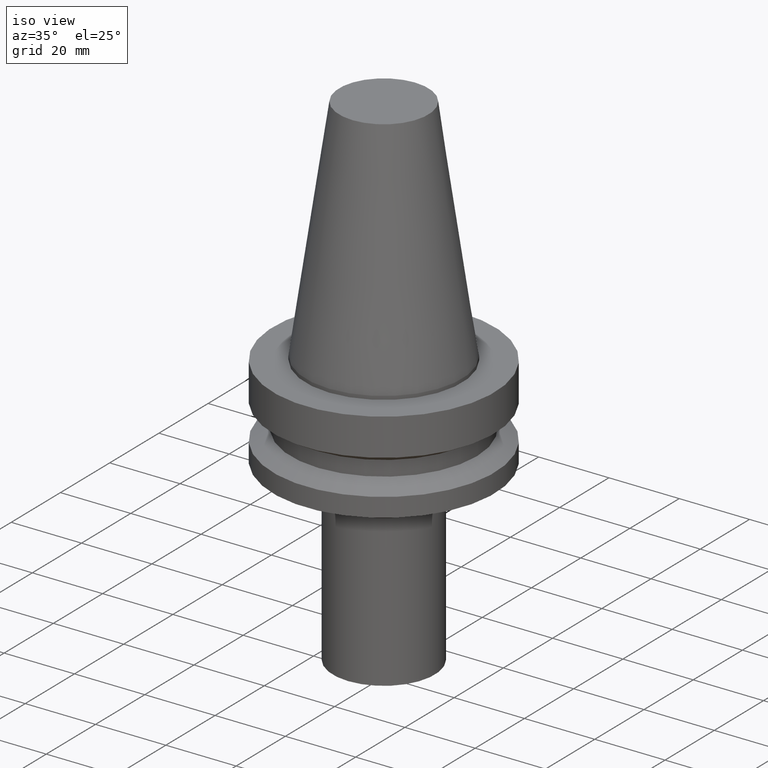
[diagram: clean part render]
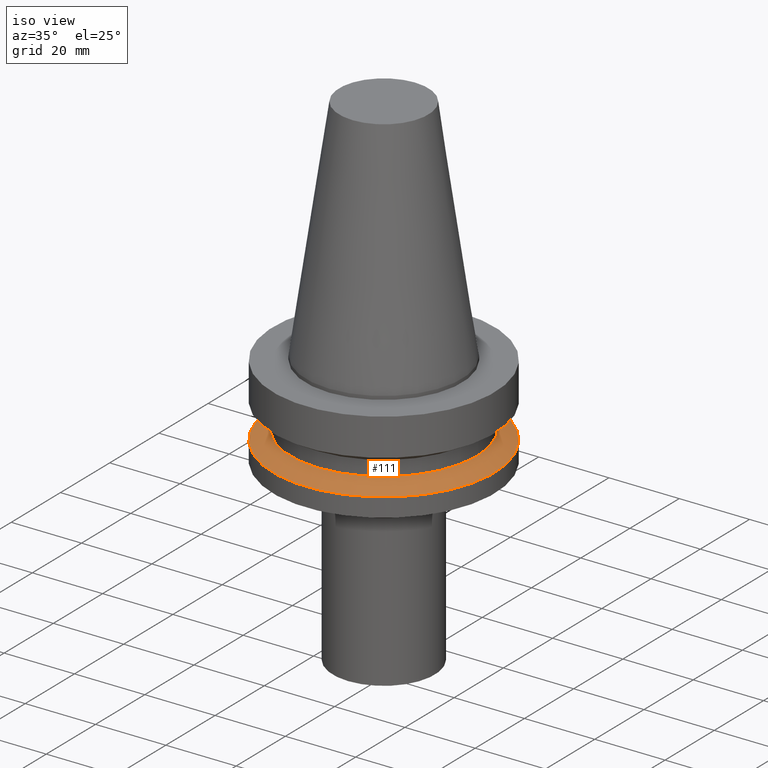
[diagram: same view with one face highlighted and labeled with its STEP entity id]
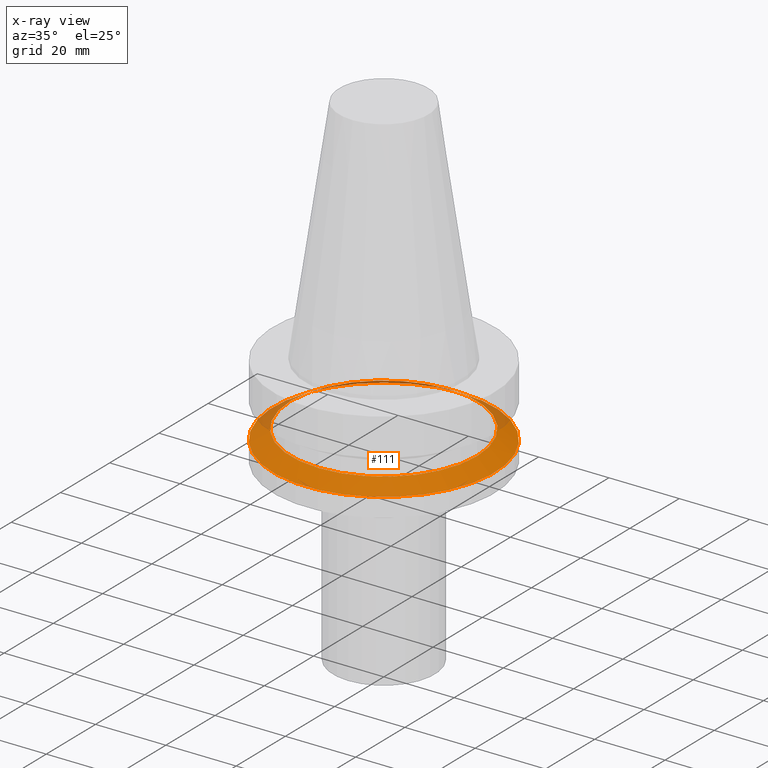
[diagram: x-ray of the same camera — body ghosted, the highlighted face saturated]
A machine part, iso view. The second image highlights one B-rep face of the part: STEP entity #111.
The next image is the same camera in x-ray: the body ghosted, the highlighted face saturated — about 11% of this face is hidden behind the body in this view.
In plain terms, the highlighted conical surface has half-angle 60 deg.
Its self-contained STEP definition (entity closure, byte-faithful):
#71=EDGE_CURVE('Unnamed[1]',#169,#169,#170,.T.);
#79=EDGE_CURVE('Unnamed[1]',#182,#182,#183,.T.);
#111=ADVANCED_FACE('Unnamed[1]',(#230,#231),#232,.T.);
#169=VERTEX_POINT('',#293);
#170=CIRCLE('',#294,26.5);
#182=VERTEX_POINT('',#309);
#183=CIRCLE('',#310,31.5000000000007);
#230=FACE_BOUND('',#369,.T.);
#231=FACE_BOUND('',#370,.T.);
#232=CONICAL_SURFACE('',#371,29.0000000000004,1.04719755119651);
#293=CARTESIAN_POINT('',(1.1479681728942E-015,26.5,-18.7477430013855));
#294=AXIS2_PLACEMENT_3D('',#427,#428,#429);
#309=CARTESIAN_POINT('',(1.32473071268174E-015,31.5000000000007,-21.6344943473346));
#310=AXIS2_PLACEMENT_3D('',#442,#443,#444);
#369=EDGE_LOOP('',(#492));
#370=EDGE_LOOP('',(#493));
#371=AXIS2_PLACEMENT_3D('',#494,#495,#496);
#427=CARTESIAN_POINT('',(1.1479681728942E-015,2.21587359671696E-014,-18.7477430013855));
#428=DIRECTION('',(6.12323399573677E-017,-6.46048942079378E-016,-1.0));
#429=DIRECTION('',(3.47319357197332E-032,1.0,-6.46048942079378E-016));
#442=CARTESIAN_POINT('',(1.32473071268174E-015,2.02937533140729E-014,-21.6344943473346));
#443=DIRECTION('',(6.12323399573677E-017,-6.46048942079378E-016,-1.0));
#444=DIRECTION('',(3.47319357197332E-032,1.0,-6.46048942079378E-016));
#492=ORIENTED_EDGE('',*,*,#79,.F.);
#493=ORIENTED_EDGE('',*,*,#71,.T.);
#494=CARTESIAN_POINT('',(1.23634944278797E-015,2.12262446406212E-014,-20.1911186743601));
#495=DIRECTION('',(6.12323399573677E-017,-6.46048942079378E-016,-1.0));
#496=DIRECTION('',(3.47319357197332E-032,1.0,-6.46048942079378E-016));